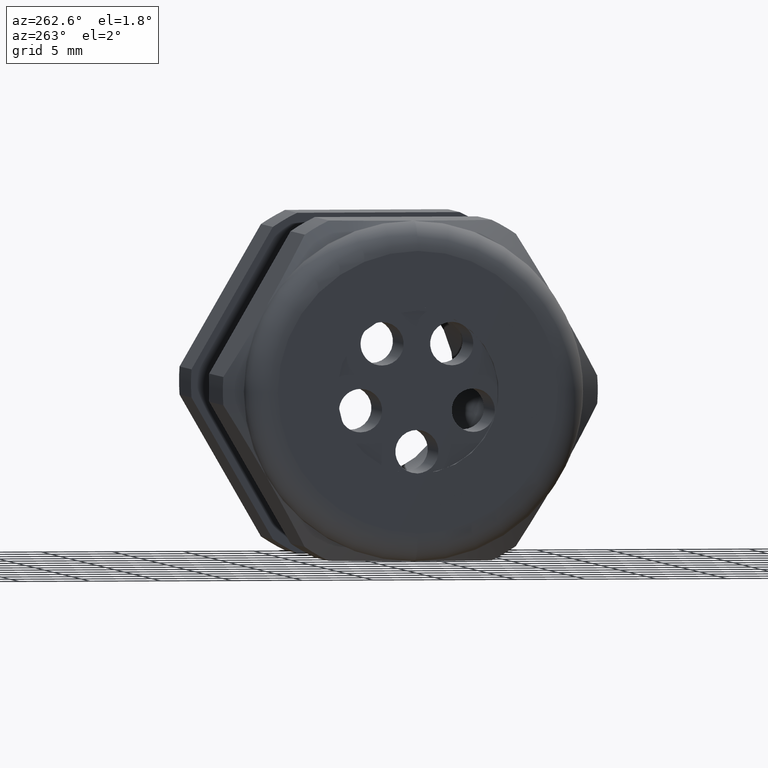
[diagram: clean part render]
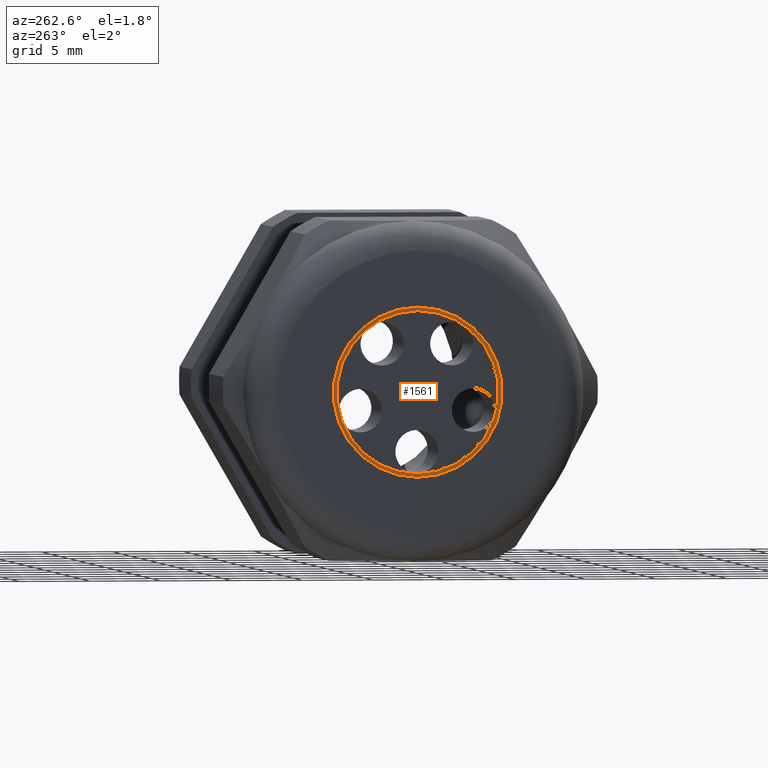
[diagram: same view with one face highlighted and labeled with its STEP entity id]
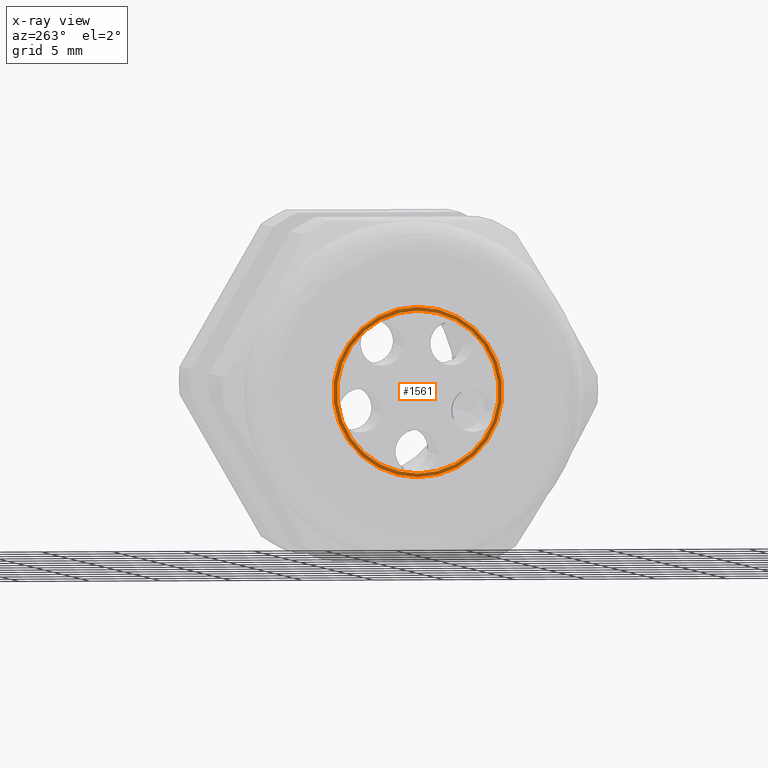
[diagram: x-ray of the same camera — body ghosted, the highlighted face saturated]
A machine part, auxiliary view. The second image highlights one B-rep face of the part: STEP entity #1561.
The next image is the same camera in x-ray: the body ghosted, the highlighted face saturated — about 0% of this face is hidden behind the body in this view.
In plain terms, the highlighted planar face has unit normal (-1, 0, 0).
Its self-contained STEP definition (entity closure, byte-faithful):
#1518 = VERTEX_POINT ( 'NONE', #4542 ) ;
#1519 = EDGE_CURVE ( 'NONE', #1523, #1518, #4540, .T. ) ;
#1523 = VERTEX_POINT ( 'NONE', #4532 ) ;
#1524 = VERTEX_POINT ( 'NONE', #4597 ) ;
#1526 = VERTEX_POINT ( 'NONE', #4592 ) ;
#1532 = EDGE_CURVE ( 'NONE', #1526, #1524, #4580, .T. ) ;
#1558 = ORIENTED_EDGE ( 'NONE', *, *, #1559, .F. ) ;
#1559 = EDGE_CURVE ( 'NONE', #1524, #1526, #4660, .T. ) ;
#1560 = EDGE_LOOP ( 'NONE', ( #1558, #1608 ) ) ;
#1561 = ADVANCED_FACE ( 'NONE', ( #4655, #4654 ), #4653, .T. ) ;
#1587 = EDGE_CURVE ( 'NONE', #1518, #1523, #4686, .T. ) ;
#1607 = ORIENTED_EDGE ( 'NONE', *, *, #1519, .T. ) ;
#1608 = ORIENTED_EDGE ( 'NONE', *, *, #1532, .F. ) ;
#1622 = ORIENTED_EDGE ( 'NONE', *, *, #1587, .T. ) ;
#1627 = EDGE_LOOP ( 'NONE', ( #1607, #1622 ) ) ;
#4532 = CARTESIAN_POINT ( 'NONE',  ( -1.409999999999999900, 0.0000000000000000000, 0.2349999999999999900 ) ) ;
#4536 = DIRECTION ( 'NONE',  ( 0.0000000000000000000, 0.0000000000000000000, 1.000000000000000000 ) ) ;
#4537 = DIRECTION ( 'NONE',  ( -1.000000000000000000, 0.0000000000000000000, 0.0000000000000000000 ) ) ;
#4538 = CARTESIAN_POINT ( 'NONE',  ( -1.409999999999999900, 0.0000000000000000000, 0.0000000000000000000 ) ) ;
#4539 = AXIS2_PLACEMENT_3D ( 'NONE', #4538, #4537, #4536 ) ;
#4540 = CIRCLE ( 'NONE', #4539, 0.2349999999999999900 ) ;
#4542 = CARTESIAN_POINT ( 'NONE',  ( -1.409999999999999900, 2.877919977996279800E-017, -0.2349999999999999900 ) ) ;
#4576 = DIRECTION ( 'NONE',  ( 0.0000000000000000000, 0.0000000000000000000, 1.000000000000000000 ) ) ;
#4577 = DIRECTION ( 'NONE',  ( -1.000000000000000000, 0.0000000000000000000, 0.0000000000000000000 ) ) ;
#4578 = CARTESIAN_POINT ( 'NONE',  ( -1.409999999999999900, 0.0000000000000000000, 0.0000000000000000000 ) ) ;
#4579 = AXIS2_PLACEMENT_3D ( 'NONE', #4578, #4577, #4576 ) ;
#4580 = CIRCLE ( 'NONE', #4579, 0.2249999999999999800 ) ;
#4592 = CARTESIAN_POINT ( 'NONE',  ( -1.409999999999999900, 2.755455298081544500E-017, -0.2249999999999999800 ) ) ;
#4597 = CARTESIAN_POINT ( 'NONE',  ( -1.409999999999999900, 0.0000000000000000000, 0.2249999999999999800 ) ) ;
#4649 = DIRECTION ( 'NONE',  ( 0.0000000000000000000, 0.0000000000000000000, 1.000000000000000000 ) ) ;
#4650 = DIRECTION ( 'NONE',  ( -1.000000000000000000, 0.0000000000000000000, 0.0000000000000000000 ) ) ;
#4651 = CARTESIAN_POINT ( 'NONE',  ( -1.409999999999999900, 0.0000000000000000000, 0.0000000000000000000 ) ) ;
#4652 = AXIS2_PLACEMENT_3D ( 'NONE', #4651, #4650, #4649 ) ;
#4653 = PLANE ( 'NONE',  #4652 ) ;
#4654 = FACE_OUTER_BOUND ( 'NONE', #1627, .T. ) ;
#4655 = FACE_BOUND ( 'NONE', #1560, .T. ) ;
#4656 = DIRECTION ( 'NONE',  ( 0.0000000000000000000, 0.0000000000000000000, 1.000000000000000000 ) ) ;
#4657 = DIRECTION ( 'NONE',  ( -1.000000000000000000, 0.0000000000000000000, 0.0000000000000000000 ) ) ;
#4658 = CARTESIAN_POINT ( 'NONE',  ( -1.409999999999999900, 0.0000000000000000000, 0.0000000000000000000 ) ) ;
#4659 = AXIS2_PLACEMENT_3D ( 'NONE', #4658, #4657, #4656 ) ;
#4660 = CIRCLE ( 'NONE', #4659, 0.2249999999999999800 ) ;
#4682 = DIRECTION ( 'NONE',  ( 0.0000000000000000000, 0.0000000000000000000, 1.000000000000000000 ) ) ;
#4683 = DIRECTION ( 'NONE',  ( -1.000000000000000000, 0.0000000000000000000, 0.0000000000000000000 ) ) ;
#4684 = CARTESIAN_POINT ( 'NONE',  ( -1.409999999999999900, 0.0000000000000000000, 0.0000000000000000000 ) ) ;
#4685 = AXIS2_PLACEMENT_3D ( 'NONE', #4684, #4683, #4682 ) ;
#4686 = CIRCLE ( 'NONE', #4685, 0.2349999999999999900 ) ;